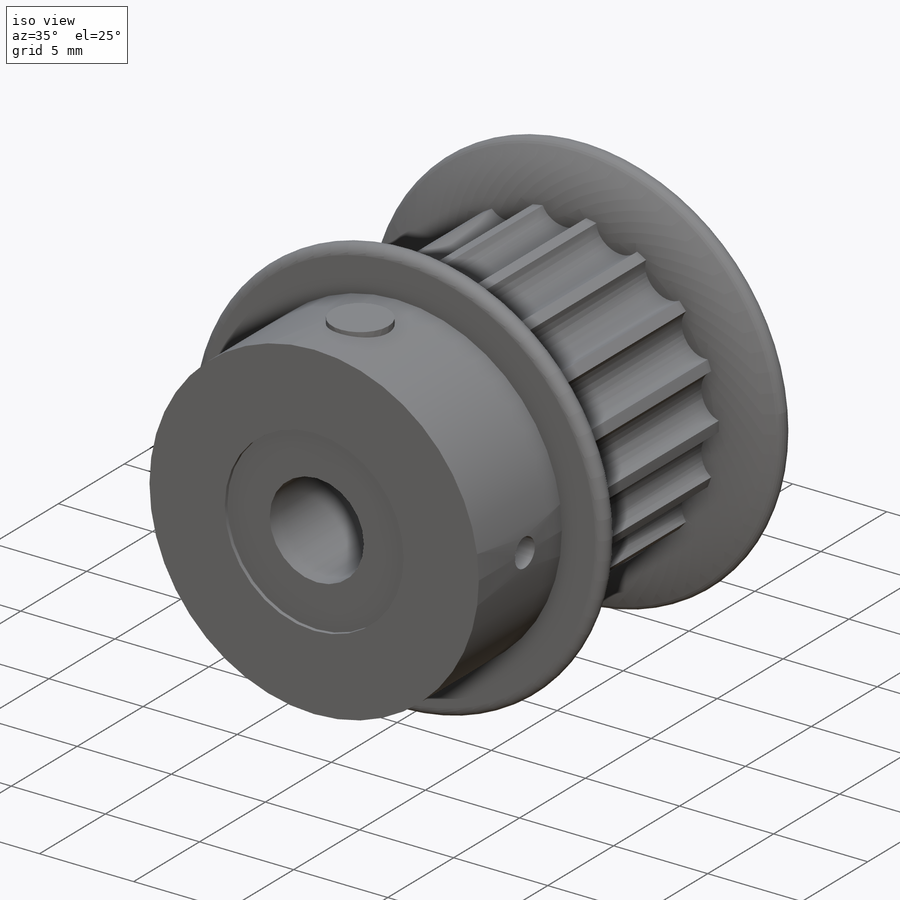
[diagram: iso view]
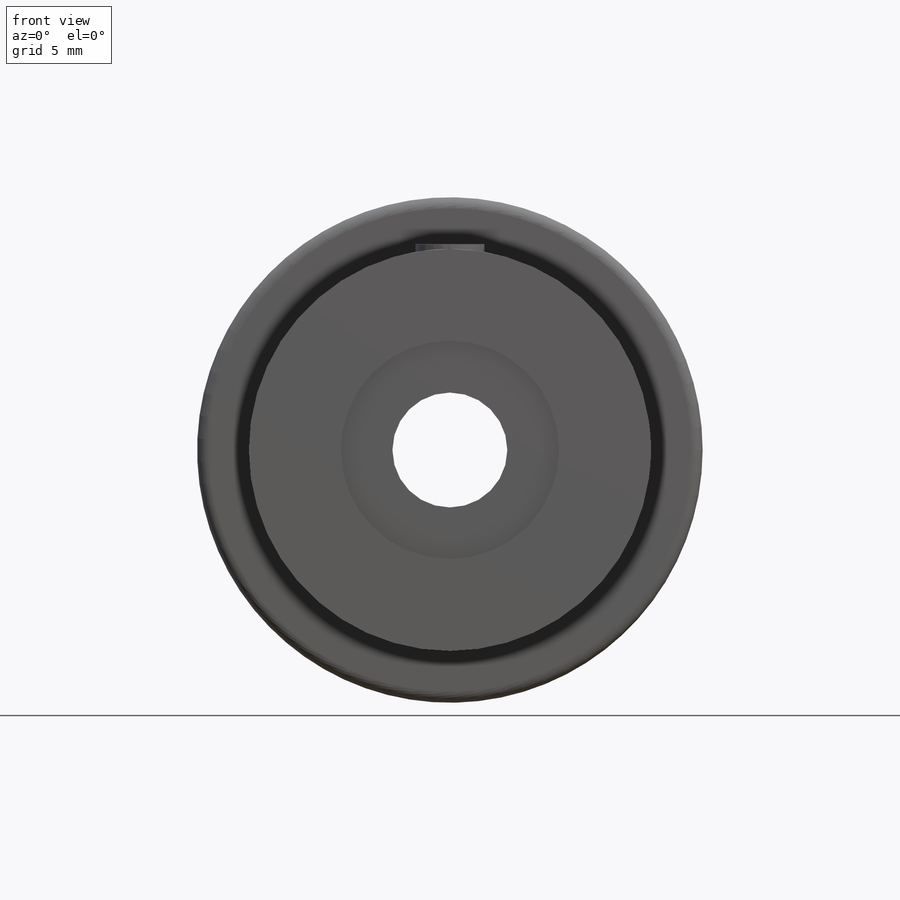
[diagram: front view]
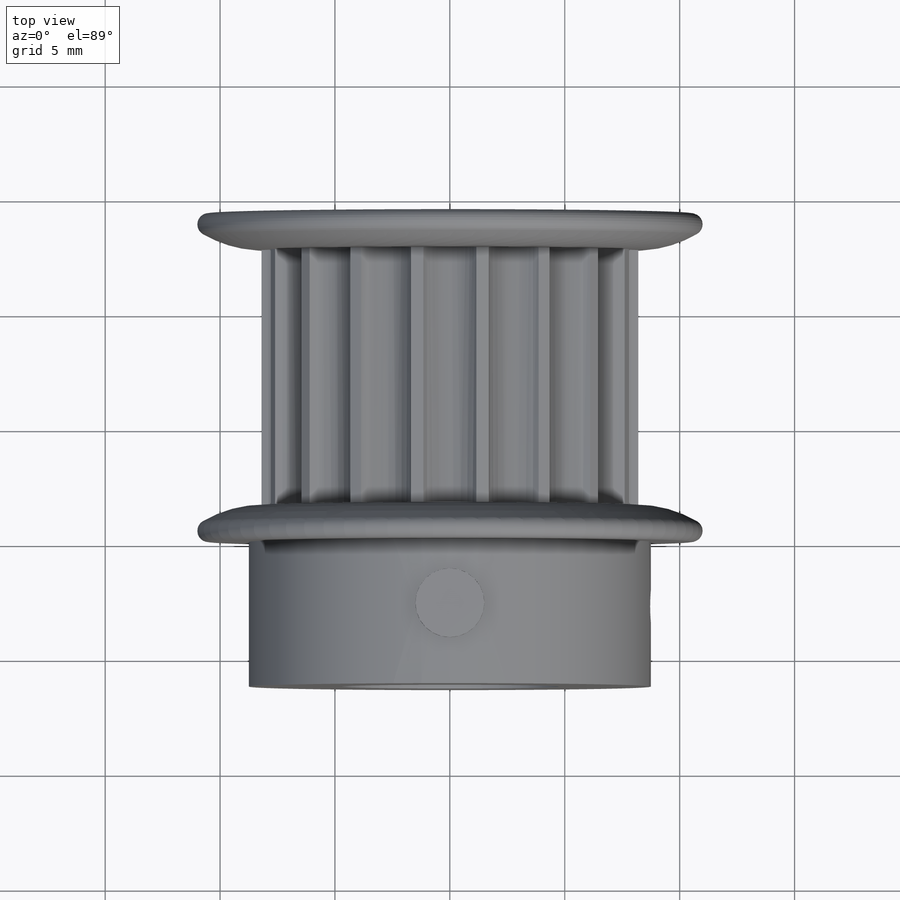
[diagram: top view]
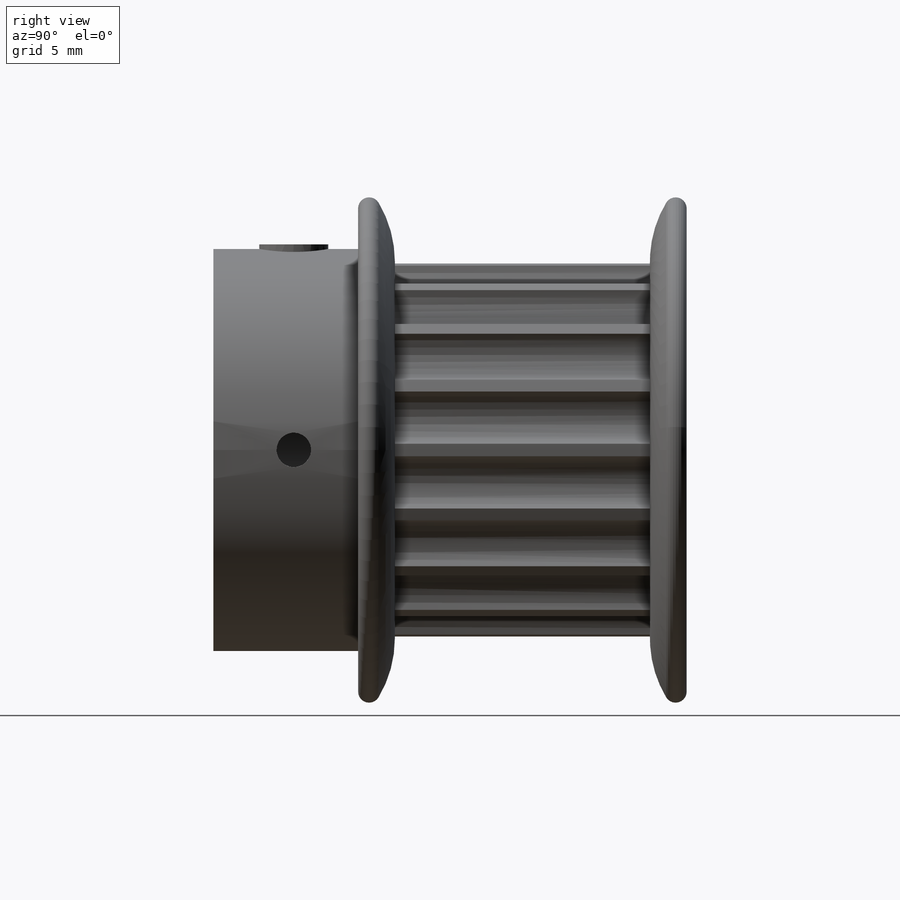
[diagram: right view]
SOLIDWORKS PART (.sldprt)
format: sldprt  version: not decoded by parser v0  size: 348,160 bytes
history: native  units: mm
features: sketch x6, plane x6, revolve x2, cut_extrude x2, material x1, pattern_circular x1 (+12 scaffold rows collapsed)
feature tree (30):
  scaffold x12  (default folders/planes/origin — collapsed)
  material  "Material <not specified>"
  sketch  "Ref Origin1"
  plane  "Plane1"
  sketch  "Sketch1"  dims[D2=5.0mm D3=5.0mm D1=20.6mm D4=~10.520526mm]
  revolve  "Revolve1"  Angle=360deg
  plane  "Plane2"
  sketch  "Sketch2"
  revolve  "Revolve2"  Angle=360deg
  sketch  "3DSketch2"
  plane  "Plane3"
  sketch  "Sketch3"  dims[D1=1.5mm]
  cut_extrude  "Cut-Extrude1"  Depth=0mm
  plane  "Plane4"
  sketch  "Sketch4"  dims[D1=2.5mm]
  cut_extrude  "Cut-Extrude2"  Depth=0mm
  plane  "Plane5"
  plane  "Plane6"
  pattern_circular  "CirPattern1"  Count=18 Angle=20deg
decode coverage: 8 of 11 modeling features carry decoded parameters
note: ~ marks probable driven/reference dimensions
note: suppression state not decoded; provenance and decode notes live in map.json
